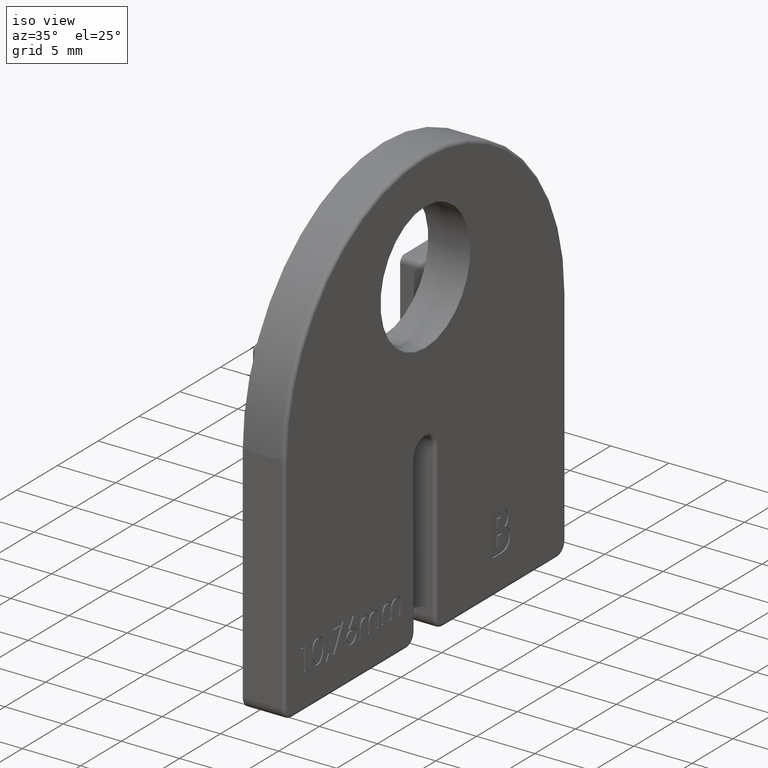
[diagram: clean part render]
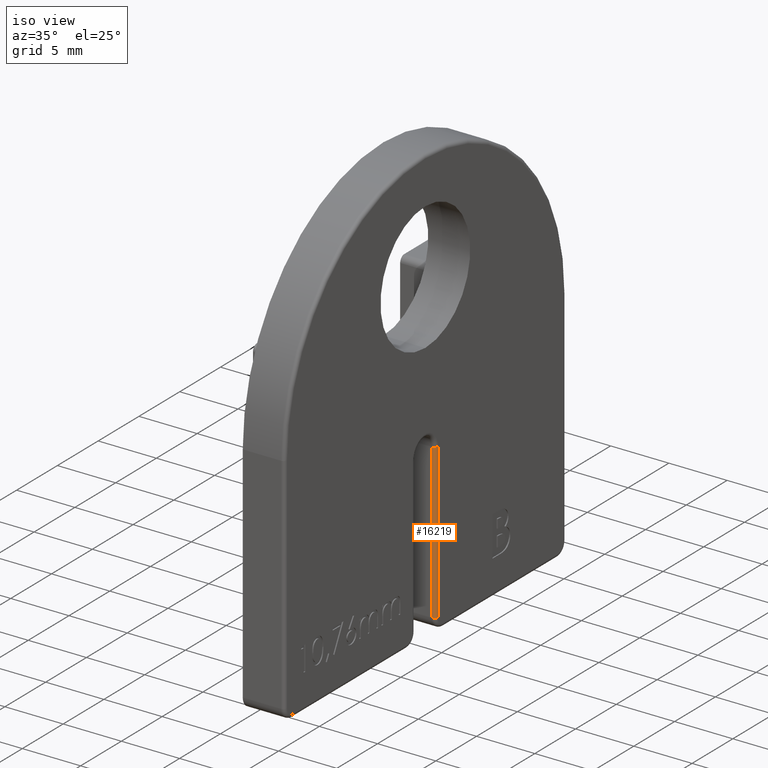
[diagram: same view with one face highlighted and labeled with its STEP entity id]
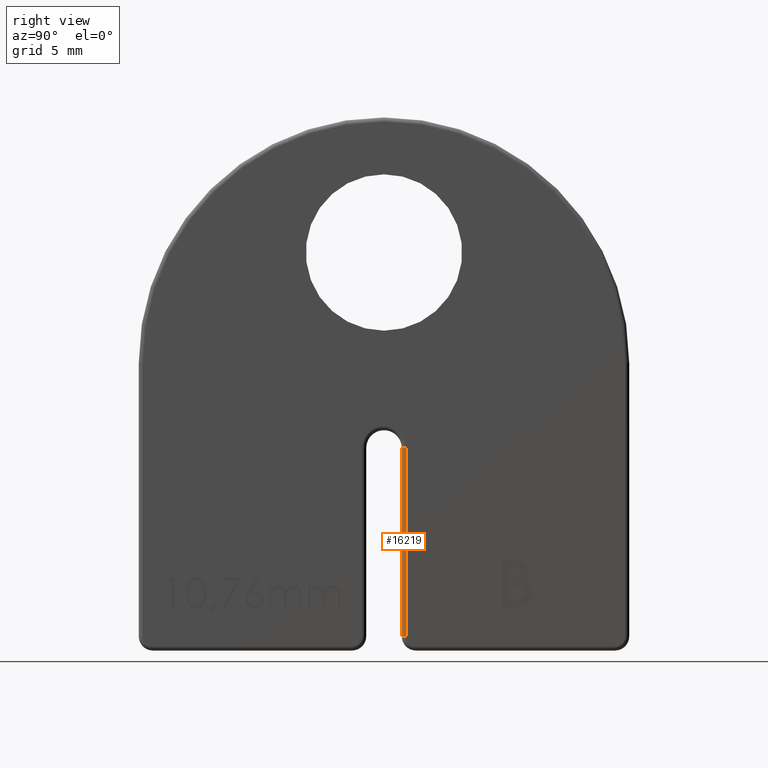
[diagram: same view with one face highlighted and labeled with its STEP entity id]
A machine part, iso view. The second image highlights one B-rep face of the part: STEP entity #16219.
A second angle (right view) of the same face is appended — the face is thin or edge-on in the first view.
In plain terms, the highlighted cylindrical surface (edge-blend (fillet) strip) has radius 0.3 mm, axis along (0, -0, 1).
Its self-contained STEP definition (entity closure, byte-faithful):
#1 = DIRECTION ( 'NONE',  ( 0.0000000000000000000, 0.0000000000000000000, -1.000000000000000000 ) ) ;
#127 = CYLINDRICAL_SURFACE ( 'NONE', #18904, 0.2999999999999999300 ) ;
#429 = VERTEX_POINT ( 'NONE', #14649 ) ;
#894 = CARTESIAN_POINT ( 'NONE',  ( 3.299999999999999800, 1.249999999999998000, 14.25000000000000200 ) ) ;
#1118 = DIRECTION ( 'NONE',  ( 0.0000000000000000000, -1.369518533665900100E-016, 1.000000000000000000 ) ) ;
#1195 = CARTESIAN_POINT ( 'NONE',  ( 3.299999999999999800, 1.249999999999998200, 14.25000000000000200 ) ) ;
#1683 = CARTESIAN_POINT ( 'NONE',  ( 3.600000000000000100, 1.550000000000000000, 0.9999999999999997800 ) ) ;
#2723 = EDGE_CURVE ( 'NONE', #429, #7601, #5749, .T. ) ;
#2949 = ORIENTED_EDGE ( 'NONE', *, *, #14849, .T. ) ;
#3439 = FACE_OUTER_BOUND ( 'NONE', #21925, .T. ) ;
#3449 = AXIS2_PLACEMENT_3D ( 'NONE', #7066, #1, #19365 ) ;
#5749 = LINE ( 'NONE', #1195, #14348 ) ;
#6327 = CIRCLE ( 'NONE', #3449, 0.2999999999999999300 ) ;
#6631 = CARTESIAN_POINT ( 'NONE',  ( 3.299999999999999800, 1.549999999999997400, 20.24999999999999600 ) ) ;
#6942 = ORIENTED_EDGE ( 'NONE', *, *, #2723, .F. ) ;
#7066 = CARTESIAN_POINT ( 'NONE',  ( 3.299999999999999800, 1.549999999999998000, 14.25000000000000200 ) ) ;
#7601 = VERTEX_POINT ( 'NONE', #894 ) ;
#7803 = DIRECTION ( 'NONE',  ( -0.0000000000000000000, 0.0000000000000000000, 1.000000000000000000 ) ) ;
#9835 = VERTEX_POINT ( 'NONE', #14641 ) ;
#10747 = EDGE_CURVE ( 'NONE', #9835, #11585, #12800, .T. ) ;
#11585 = VERTEX_POINT ( 'NONE', #1683 ) ;
#12165 = AXIS2_PLACEMENT_3D ( 'NONE', #14885, #7803, #18715 ) ;
#12469 = EDGE_CURVE ( 'NONE', #9835, #7601, #6327, .T. ) ;
#12800 = LINE ( 'NONE', #14546, #22782 ) ;
#14287 = CIRCLE ( 'NONE', #12165, 0.2999999999999999300 ) ;
#14348 = VECTOR ( 'NONE', #15417, 1000.000000000000000 ) ;
#14546 = CARTESIAN_POINT ( 'NONE',  ( 3.600000000000000100, 1.550000000000000300, 0.0000000000000000000 ) ) ;
#14641 = CARTESIAN_POINT ( 'NONE',  ( 3.600000000000000100, 1.549999999999998000, 14.25000000000000200 ) ) ;
#14649 = CARTESIAN_POINT ( 'NONE',  ( 3.299999999999999800, 1.250000000000000000, 0.9999999999999991100 ) ) ;
#14849 = EDGE_CURVE ( 'NONE', #429, #11585, #14287, .T. ) ;
#14885 = CARTESIAN_POINT ( 'NONE',  ( 3.299999999999999800, 1.550000000000000000, 0.9999999999999997800 ) ) ;
#15417 = DIRECTION ( 'NONE',  ( -0.0000000000000000000, -1.369518533665900100E-016, 1.000000000000000000 ) ) ;
#15653 = ORIENTED_EDGE ( 'NONE', *, *, #12469, .T. ) ;
#16219 = ADVANCED_FACE ( 'NONE', ( #3439 ), #127, .T. ) ;
#18715 = DIRECTION ( 'NONE',  ( 1.000000000000000000, 0.0000000000000000000, 0.0000000000000000000 ) ) ;
#18904 = AXIS2_PLACEMENT_3D ( 'NONE', #6631, #1118, #20553 ) ;
#19365 = DIRECTION ( 'NONE',  ( -1.000000000000000000, 0.0000000000000000000, 0.0000000000000000000 ) ) ;
#20011 = DIRECTION ( 'NONE',  ( 0.0000000000000000000, 1.369518533665900100E-016, -1.000000000000000000 ) ) ;
#20553 = DIRECTION ( 'NONE',  ( 0.0000000000000000000, -1.000000000000000000, 0.0000000000000000000 ) ) ;
#21743 = ORIENTED_EDGE ( 'NONE', *, *, #10747, .F. ) ;
#21925 = EDGE_LOOP ( 'NONE', ( #6942, #2949, #21743, #15653 ) ) ;
#22782 = VECTOR ( 'NONE', #20011, 1000.000000000000000 ) ;